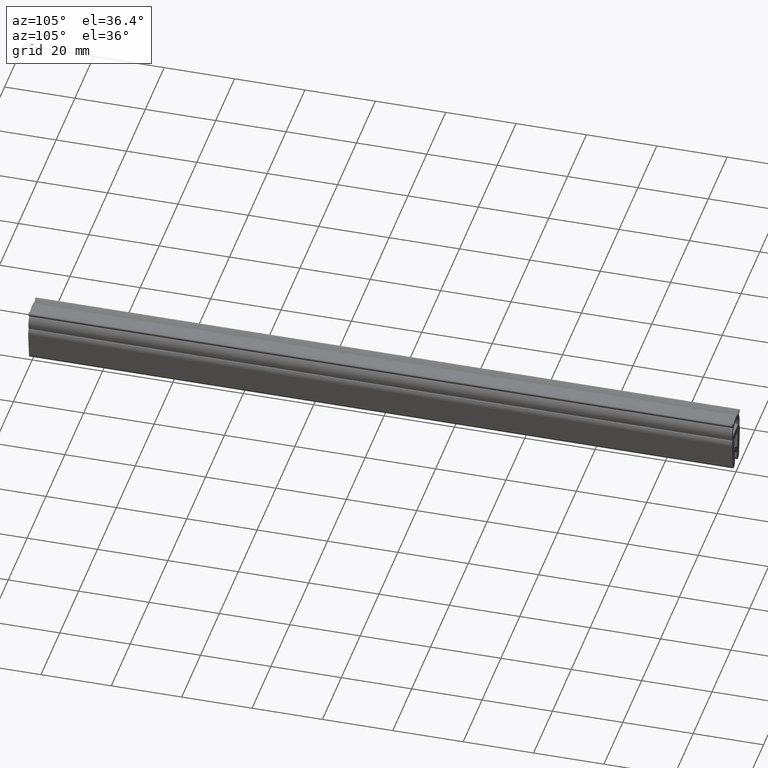
[diagram: clean part render]
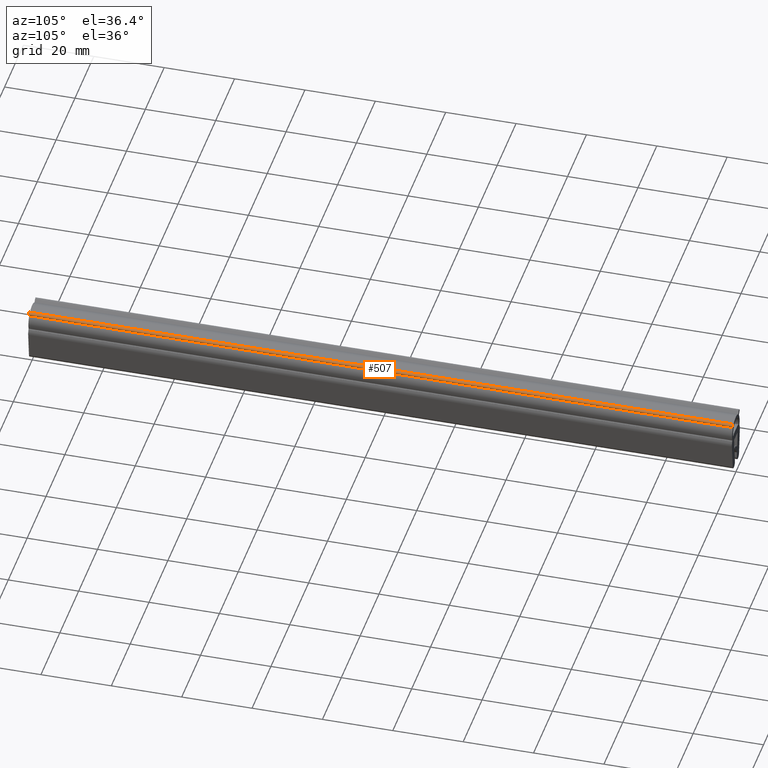
[diagram: same view with one face highlighted and labeled with its STEP entity id]
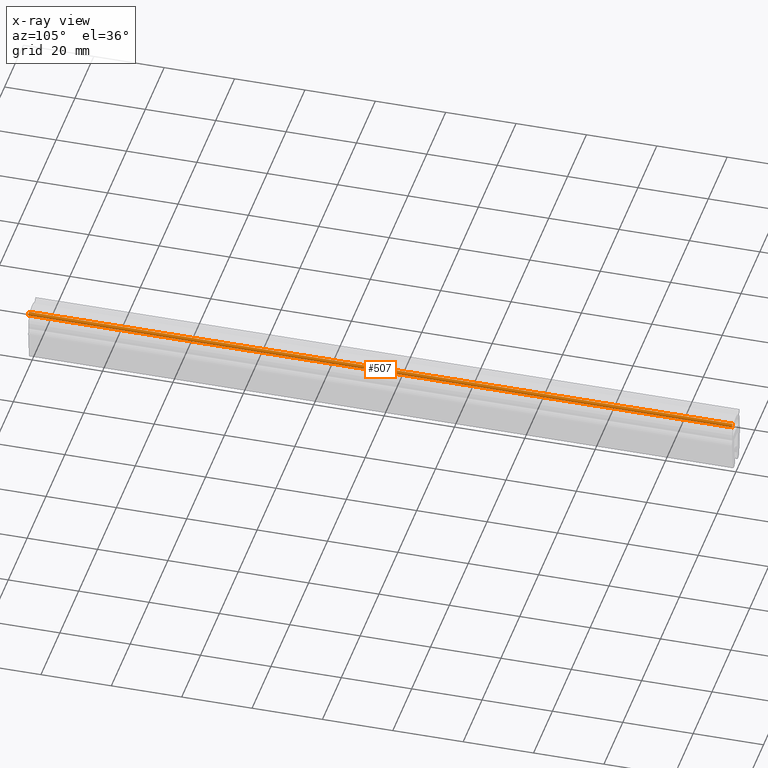
[diagram: x-ray of the same camera — body ghosted, the highlighted face saturated]
A machine part, auxiliary view. The second image highlights one B-rep face of the part: STEP entity #507.
The next image is the same camera in x-ray: the body ghosted, the highlighted face saturated — about 0% of this face is hidden behind the body in this view.
In plain terms, the highlighted face is a freeform B-spline surface patch.
Its self-contained STEP definition (entity closure, byte-faithful):
#115=CARTESIAN_POINT('',(3.853553390593270,0.0,-0.853553390593292));
#116=VERTEX_POINT('',#115);
#122=CARTESIAN_POINT('',(3.146446609406710,0.0,-0.146446609406766));
#123=VERTEX_POINT('',#122);
#124=CARTESIAN_POINT('',(3.853553390593270,0.0,-0.853553390593292));
#125=CARTESIAN_POINT('',(4.057677535825209,0.0,-0.649429245361357));
#126=CARTESIAN_POINT('',(3.982962913144533,0.0,-0.370590477448748));
#127=CARTESIAN_POINT('',(3.908248290463857,0.0,-0.091751709536138));
#128=CARTESIAN_POINT('',(3.629409522551243,0.0,-0.017037086855475));
#129=CARTESIAN_POINT('',(3.350570754638631,0.0,0.057677535825188));
#130=CARTESIAN_POINT('',(3.146446609406706,0.0,-0.146446609406761));
#138=(BOUNDED_CURVE()B_SPLINE_CURVE(2,(#124,#125,#126,#127,#128,#129,#130),.UNSPECIFIED.,.F.,.U.)B_SPLINE_CURVE_WITH_KNOTS((3,2,2,3),(0.0,0.333333333333333,0.666666666666667,1.0),.UNSPECIFIED.)CURVE()GEOMETRIC_REPRESENTATION_ITEM()RATIONAL_B_SPLINE_CURVE((1.0,0.866025403784433,1.0,0.866025403784433,1.0,0.866025403784433,1.0))REPRESENTATION_ITEM(''));
#139=EDGE_CURVE('',#116,#123,#138,.T.);
#297=CARTESIAN_POINT('',(3.146446609406710,200.0,-0.146446609406766));
#298=VERTEX_POINT('',#297);
#304=CARTESIAN_POINT('',(3.853553390593270,200.0,-0.853553390593292));
#305=VERTEX_POINT('',#304);
#306=CARTESIAN_POINT('',(3.853553390593270,200.0,-0.853553390593292));
#307=CARTESIAN_POINT('',(4.057677535825209,200.000000000000030,-0.649429245361357));
#308=CARTESIAN_POINT('',(3.982962913144533,200.0,-0.370590477448748));
#309=CARTESIAN_POINT('',(3.908248290463857,200.000000000000030,-0.091751709536138));
#310=CARTESIAN_POINT('',(3.629409522551243,200.0,-0.017037086855475));
#311=CARTESIAN_POINT('',(3.350570754638631,200.000000000000030,0.057677535825188));
#312=CARTESIAN_POINT('',(3.146446609406706,200.0,-0.146446609406761));
#320=(BOUNDED_CURVE()B_SPLINE_CURVE(2,(#306,#307,#308,#309,#310,#311,#312),.UNSPECIFIED.,.F.,.U.)B_SPLINE_CURVE_WITH_KNOTS((3,2,2,3),(0.0,0.333333333333333,0.666666666666667,1.0),.UNSPECIFIED.)CURVE()GEOMETRIC_REPRESENTATION_ITEM()RATIONAL_B_SPLINE_CURVE((1.0,0.866025403784433,1.0,0.866025403784433,1.0,0.866025403784433,1.0))REPRESENTATION_ITEM(''));
#321=EDGE_CURVE('',#305,#298,#320,.T.);
#471=CARTESIAN_POINT('',(3.853553390593270,200.0,-0.853553390593292));
#472=CARTESIAN_POINT('',(3.853553390593270,0.0,-0.853553390593292));
#473=QUASI_UNIFORM_CURVE('',1,(#471,#472),.UNSPECIFIED.,.F.,.U.);
#474=EDGE_CURVE('',#305,#116,#473,.T.);
#479=CARTESIAN_POINT('',(3.137312814493835,205.0,-0.155822712153159));
#480=CARTESIAN_POINT('',(3.137312814493835,-5.125000000000000,-0.155822712153159));
#481=CARTESIAN_POINT('',(3.496845099851461,205.000000000000110,0.223045264553597));
#482=CARTESIAN_POINT('',(3.496845099851461,-5.125000000000000,0.223045264553597));
#483=CARTESIAN_POINT('',(3.859669900169304,205.0,-0.152670814770493));
#484=CARTESIAN_POINT('',(3.859669900169304,-5.125000000000000,-0.152670814770493));
#485=CARTESIAN_POINT('',(4.222494700487147,205.000000000000110,-0.528386894094583));
#486=CARTESIAN_POINT('',(4.222494700487147,-5.125000000000000,-0.528386894094583));
#487=CARTESIAN_POINT('',(3.831310024107892,205.0,-0.874477860394494));
#488=CARTESIAN_POINT('',(3.831310024107892,-5.125000000000000,-0.874477860394494));
#496=(BOUNDED_SURFACE()B_SPLINE_SURFACE(1,2,((#479,#481,#483,#485,#487),(#480,#482,#484,#486,#488)),.UNSPECIFIED.,.F.,.F.,.U.)B_SPLINE_SURFACE_WITH_KNOTS((2,2),(3,2,3),(0.0,210.125000000000000),(0.0,1.0,2.0),.UNSPECIFIED.)GEOMETRIC_REPRESENTATION_ITEM()RATIONAL_B_SPLINE_SURFACE(((1.0,0.691513055782269,1.0,0.691513055782269,1.0),(1.0,0.691513055782269,1.0,0.691513055782269,1.0)))REPRESENTATION_ITEM('')SURFACE());
#497=ORIENTED_EDGE('',*,*,#139,.F.);
#498=ORIENTED_EDGE('',*,*,#474,.F.);
#499=ORIENTED_EDGE('',*,*,#321,.T.);
#500=CARTESIAN_POINT('',(3.146446609406710,200.0,-0.146446609406766));
#501=CARTESIAN_POINT('',(3.146446609406710,0.0,-0.146446609406766));
#502=QUASI_UNIFORM_CURVE('',1,(#500,#501),.UNSPECIFIED.,.F.,.U.);
#503=EDGE_CURVE('',#298,#123,#502,.T.);
#504=ORIENTED_EDGE('',*,*,#503,.T.);
#505=EDGE_LOOP('',(#497,#498,#499,#504));
#506=FACE_OUTER_BOUND('',#505,.T.);
#507=ADVANCED_FACE('',(#506),#496,.T.);